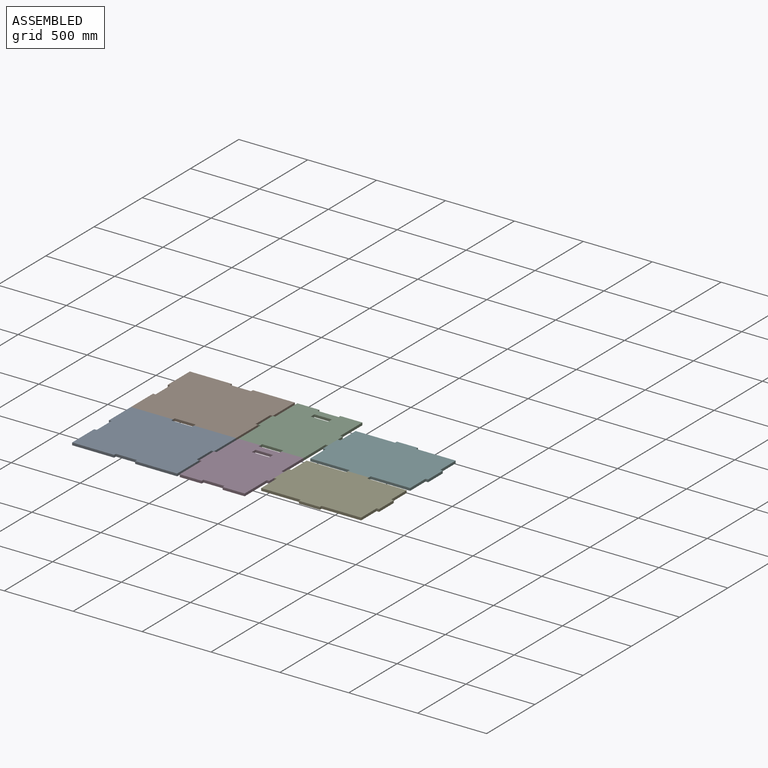
[diagram: assembled view]
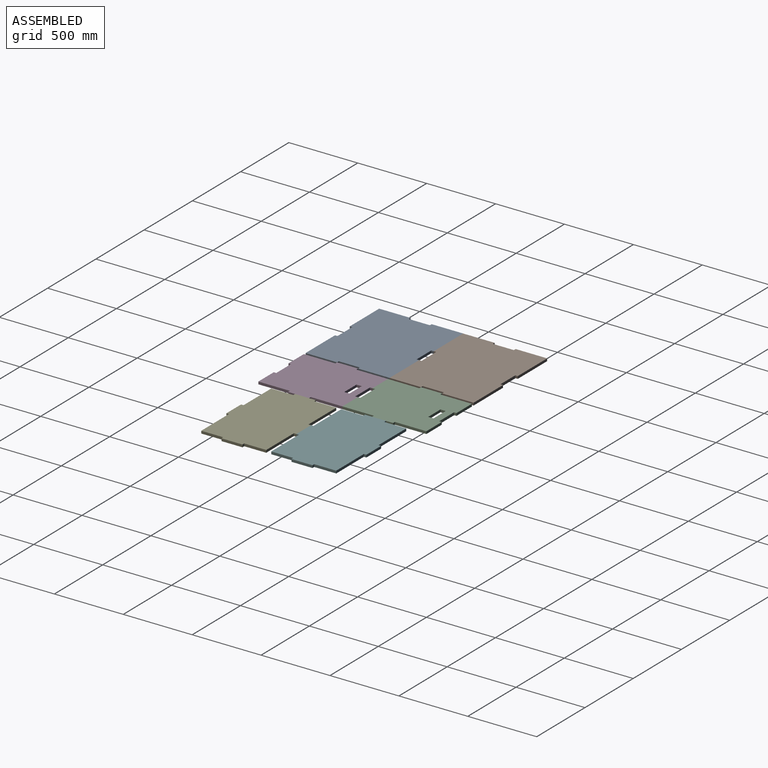
[diagram: assembled view, second angle]
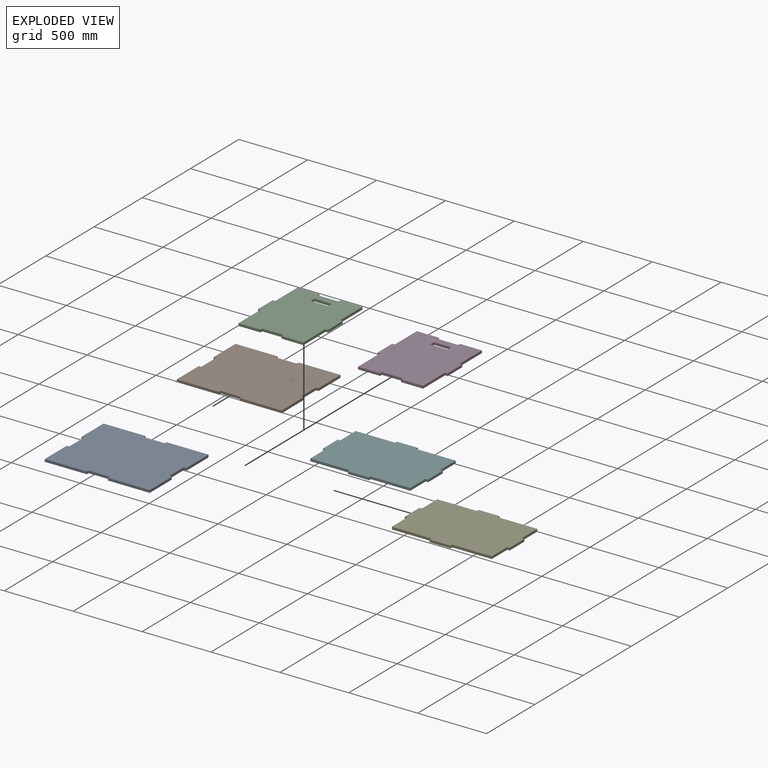
[diagram: exploded view]
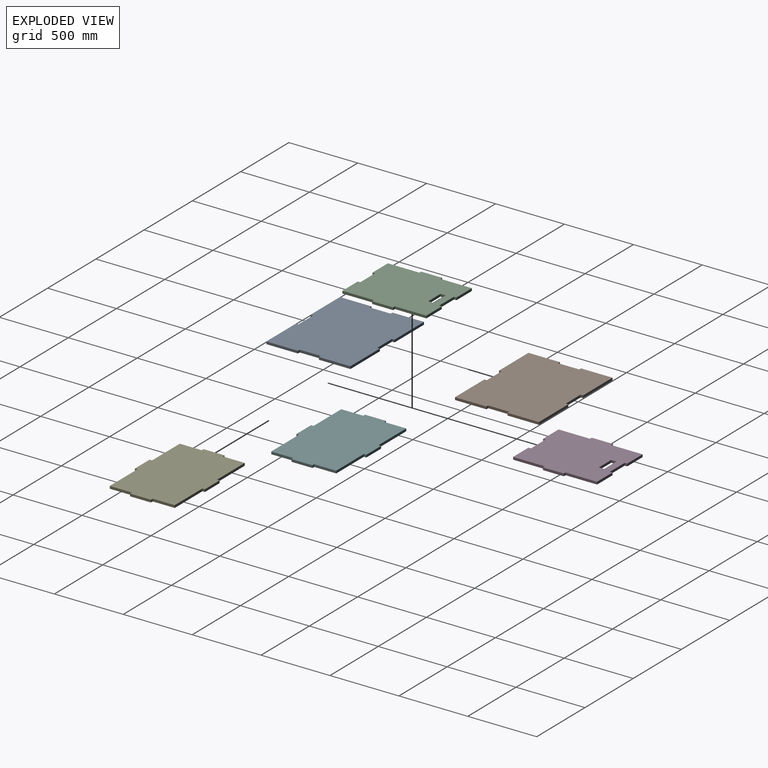
[diagram: exploded view, second angle]
ASSEMBLY  parts=6 mates=4
PART A: 22 faces, bbox 18.3x762x609.6 mm
  f0: plane 228.6x18.26mm, normal (0,1,0), area 4173.4mm2, adj f1,f19,f20,f21
  f1: plane 304.8x18.26mm, normal (0,0,1), area 5564.5mm2, adj f0,f2,f20,f21
  f2: plane 18.26x18.26mm, normal (0,-1,0), area 333.3mm2, adj f1,f3,f20,f21
  f3: plane 152.4x18.26mm, normal (0,0,1), area 2782.3mm2, adj f2,f4,f20,f21
  f4: plane 18.26x18.26mm, normal (0,1,0), area 333.3mm2, adj f3,f5,f20,f21
  f5: plane 304.8x18.26mm, normal (0,0,1), area 5564.5mm2, adj f4,f6,f20,f21
  f6: plane 228.6x18.26mm, normal (0,-1,0), area 4173.4mm2, adj f5,f7,f20,f21
  f7: plane 18.26x18.26mm, normal (0,0,-1), area 333.3mm2, adj f6,f8,f20,f21
  f8: plane 152.4x18.26mm, normal (0,-1,0), area 2782.3mm2, adj f7,f9,f20,f21
  f9: plane 18.26x18.26mm, normal (0,0,1), area 333.3mm2, adj f8,f10,f20,f21
  f10: plane 228.6x18.26mm, normal (0,-1,0), area 4173.4mm2, adj f9,f11,f20,f21
  f11: plane 304.8x18.26mm, normal (0,0,-1), area 5564.5mm2, adj f10,f12,f20,f21
  f12: plane 18.26x18.26mm, normal (0,1,0), area 333.3mm2, adj f11,f13,f20,f21
  f13: plane 152.4x18.26mm, normal (0,0,-1), area 2782.3mm2, adj f12,f14,f20,f21
  f14: plane 18.26x18.26mm, normal (0,-1,0), area 333.3mm2, adj f13,f15,f20,f21
  f15: plane 304.8x18.26mm, normal (0,0,-1), area 5564.5mm2, adj f14,f16,f20,f21
  f16: plane 228.6x18.26mm, normal (0,1,0), area 4173.4mm2, adj f15,f17,f20,f21
  f17: plane 18.26x18.26mm, normal (0,0,1), area 333.3mm2, adj f16,f18,f20,f21
  f18: plane 152.4x18.26mm, normal (0,1,0), area 2782.3mm2, adj f17,f19,f20,f21
  f19: plane 18.26x18.26mm, normal (0,0,-1), area 333.3mm2, adj f0,f18,f20,f21
  f20: plane 762x609.6mm, normal (1,0,0), area 453386.2mm2, adj f0,f1,f2,f3,f4,f5,f6,f7
  f21: plane 762x609.6mm, normal (-1,0,0), area 453386.2mm2, adj f0,f1,f2,f3,f4,f5,f6,f7
PART B: same geometry as A
PART C: 26 faces, bbox 508x18.3x609.6 mm
  f0: plane 152.4x18.26mm, normal (0,0,-1), area 2782.3mm2, adj f1,f23,f24,f25
  f1: plane 18.26x18.26mm, normal (-1,0,0), area 333.3mm2, adj f0,f2,f24,f25
  f2: plane 159.54x18.26mm, normal (0,0,-1), area 2912.7mm2, adj f1,f3,f24,f25
  f3: plane 228.6x18.26mm, normal (1,0,0), area 4173.4mm2, adj f2,f4,f24,f25
  f4: plane 18.26x18.26mm, normal (0,0,-1), area 333.3mm2, adj f3,f5,f24,f25
  f5: plane 152.4x18.26mm, normal (1,0,0), area 2782.3mm2, adj f4,f6,f24,f25
  f6: plane 18.26x18.26mm, normal (0,0,1), area 333.3mm2, adj f5,f7,f24,f25
  f7: plane 228.6x18.26mm, normal (1,0,0), area 4173.4mm2, adj f6,f8,f24,f25
  f8: plane 159.54x18.26mm, normal (0,0,1), area 2912.7mm2, adj f7,f9,f24,f25
  f9: plane 18.26x18.26mm, normal (-1,0,0), area 333.3mm2, adj f8,f10,f24,f25
  f10: plane 152.4x18.26mm, normal (0,0,1), area 2782.3mm2, adj f9,f11,f24,f25
  f11: plane 18.26x18.26mm, normal (1,0,0), area 333.3mm2, adj f10,f12,f24,f25
  f12: plane 159.54x18.26mm, normal (0,0,1), area 2912.7mm2, adj f11,f13,f24,f25
  f13: plane 228.6x18.26mm, normal (-1,0,0), area 4173.4mm2, adj f12,f14,f24,f25
  f14: plane 18.26x18.26mm, normal (0,0,1), area 333.3mm2, adj f13,f15,f24,f25
  f15: plane 152.4x18.26mm, normal (-1,0,0), area 2782.3mm2, adj f14,f16,f24,f25
  f16: plane 18.26x18.26mm, normal (0,0,-1), area 333.3mm2, adj f15,f17,f24,f25
  f17: plane 228.6x18.26mm, normal (-1,0,0), area 4173.4mm2, adj f16,f18,f24,f25
  f18: plane 159.54x18.26mm, normal (0,0,-1), area 2912.7mm2, adj f17,f23,f24,f25
  f19: plane 38.1x18.26mm, normal (1,0,0), area 695.6mm2, adj f20,f22,f24,f25
  f20: plane 127x18.26mm, normal (0,0,-1), area 2318.5mm2, adj f19,f21,f24,f25
  f21: plane 38.1x18.26mm, normal (-1,0,0), area 695.6mm2, adj f20,f22,f24,f25
  f22: plane 127x18.26mm, normal (0,0,1), area 2318.5mm2, adj f19,f21,f24,f25
  f23: plane 18.26x18.26mm, normal (1,0,0), area 333.3mm2, adj f0,f18,f24,f25
  f24: plane 609.6x508mm, normal (0,1,0), area 282580.1mm2, adj f0,f1,f2,f3,f4,f5,f6,f7
  f25: plane 609.6x508mm, normal (0,-1,0), area 282580.1mm2, adj f0,f1,f2,f3,f4,f5,f6,f7
PART D: same geometry as C
PART E: 22 faces, bbox 508x762x18.3 mm
  f0: plane 152.4x18.26mm, normal (0,-1,0), area 2782.3mm2, adj f1,f19,f20,f21
  f1: plane 18.26x18.26mm, normal (1,0,0), area 333.3mm2, adj f0,f2,f20,f21
  f2: plane 159.54x18.26mm, normal (0,-1,0), area 2912.7mm2, adj f1,f3,f20,f21
  f3: plane 286.54x18.26mm, normal (1,0,0), area 5231.2mm2, adj f2,f4,f20,f21
  f4: plane 18.26x18.26mm, normal (0,-1,0), area 333.3mm2, adj f3,f5,f20,f21
  f5: plane 152.4x18.26mm, normal (1,0,0), area 2782.3mm2, adj f4,f6,f20,f21
  f6: plane 18.26x18.26mm, normal (0,1,0), area 333.3mm2, adj f5,f7,f20,f21
  f7: plane 286.54x18.26mm, normal (1,0,0), area 5231.2mm2, adj f6,f8,f20,f21
  f8: plane 159.54x18.26mm, normal (0,1,0), area 2912.7mm2, adj f7,f9,f20,f21
  f9: plane 18.26x18.26mm, normal (1,0,0), area 333.3mm2, adj f8,f10,f20,f21
  f10: plane 152.4x18.26mm, normal (0,1,0), area 2782.3mm2, adj f9,f11,f20,f21
  f11: plane 18.26x18.26mm, normal (-1,0,0), area 333.3mm2, adj f10,f12,f20,f21
  f12: plane 159.54x18.26mm, normal (0,1,0), area 2912.7mm2, adj f11,f13,f20,f21
  f13: plane 286.54x18.26mm, normal (-1,0,0), area 5231.2mm2, adj f12,f14,f20,f21
  f14: plane 18.26x18.26mm, normal (0,1,0), area 333.3mm2, adj f13,f15,f20,f21
  f15: plane 152.4x18.26mm, normal (-1,0,0), area 2782.3mm2, adj f14,f16,f20,f21
  f16: plane 18.26x18.26mm, normal (0,-1,0), area 333.3mm2, adj f15,f17,f20,f21
  f17: plane 286.54x18.26mm, normal (-1,0,0), area 5231.2mm2, adj f16,f18,f20,f21
  f18: plane 159.54x18.26mm, normal (0,-1,0), area 2912.7mm2, adj f17,f19,f20,f21
  f19: plane 18.26x18.26mm, normal (-1,0,0), area 333.3mm2, adj f0,f18,f20,f21
  f20: plane 762x508mm, normal (0,0,1), area 353187.3mm2, adj f0,f1,f2,f3,f4,f5,f6,f7
  f21: plane 762x508mm, normal (0,0,-1), area 353187.3mm2, adj f0,f1,f2,f3,f4,f5,f6,f7
PART F: same geometry as E
PLACE A rot(axis=(0.58,0.58,-0.58),120deg) t=(-1299.96,455.65,19.02)mm
PLACE B rot(axis=(-0.58,0.58,0.58),120deg) t=(-537.96,455.65,19.02)mm
PLACE C rot(axis=(0,-0.71,-0.71),180deg) t=(-519.7,455.65,0.76)mm
PLACE D rot(axis=(-1,0,0),90deg) t=(-48.22,-153.95,19.02)mm
PLACE E rot(axis=(0,0,-1),90deg) t=(-29.95,-34.91,0.89)mm
PLACE F rot(axis=(0.71,-0.71,0),180deg) t=(732.05,473.09,19.15)mm
MATE fastened D.f16 <-> A.f19  axis (0,1,0) through (-537.96,74.65,0.76)mm
MATE fastened E.f20 <-> F.f21  axis (0,0,1) through (351.05,454.83,19.15)mm
MATE fastened D.f25 <-> C.f24  axis (0,0,1) through (-519.7,455.65,19.02)mm
MATE fastened B.f15 <-> A.f11  axis (0,1,0) through (-1299.96,455.65,0.76)mm
